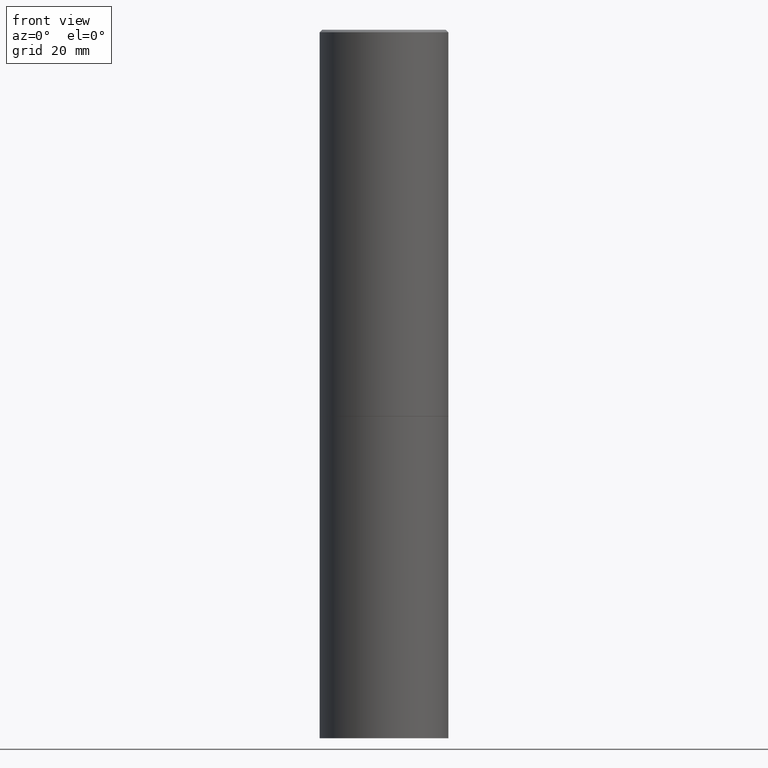
[diagram: clean part render]
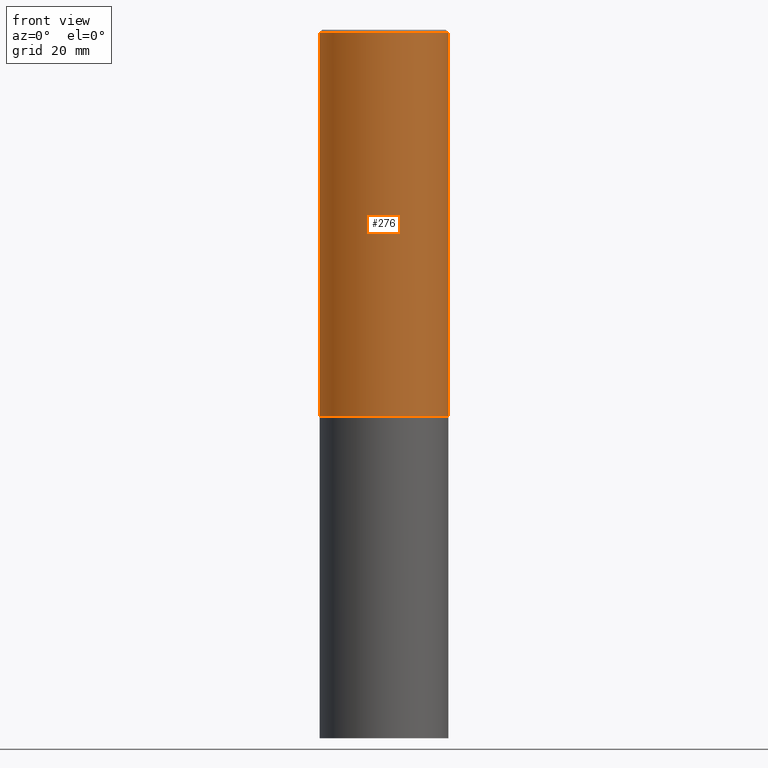
[diagram: same view with one face highlighted and labeled with its STEP entity id]
A machine part, front view. The second image highlights one B-rep face of the part: STEP entity #276.
In plain terms, the highlighted cylindrical surface (partial cylindrical patch) has radius 12.7 mm, axis along (-0, 0, 1).
Its self-contained STEP definition (entity closure, byte-faithful):
#3 = LINE ( 'NONE', #17, #142 ) ;
#12 = VERTEX_POINT ( 'NONE', #364 ) ;
#17 = CARTESIAN_POINT ( 'NONE',  ( -0.4999999999999998335, 3.552713678800499746E-15, -2.459467545127452330E-29 ) ) ;
#18 = VERTEX_POINT ( 'NONE', #109 ) ;
#20 = AXIS2_PLACEMENT_3D ( 'NONE', #47, #51, #165 ) ;
#42 = VERTEX_POINT ( 'NONE', #187 ) ;
#47 = CARTESIAN_POINT ( 'NONE',  ( 7.333960949749226429E-29, -1.047095253519059492E-14, -2.999000000000000554 ) ) ;
#51 = DIRECTION ( 'NONE',  ( -2.445468806185136597E-29, 3.491481338843145583E-15, 1.000000000000000000 ) ) ;
#53 = CARTESIAN_POINT ( 'NONE',  ( 0.4999999999999998335, -3.491481338843132566E-15, 2.438088387897967336E-29 ) ) ;
#77 = CARTESIAN_POINT ( 'NONE',  ( 0.000000000000000000, 0.000000000000000000, 0.000000000000000000 ) ) ;
#85 = CARTESIAN_POINT ( 'NONE',  ( 4.890937612370306439E-31, -6.982962677686338448E-17, -0.02000000000000013572 ) ) ;
#88 = ORIENTED_EDGE ( 'NONE', *, *, #284, .T. ) ;
#107 = DIRECTION ( 'NONE',  ( -2.445468806185136877E-29, 3.491481338843145188E-15, 1.000000000000000000 ) ) ;
#109 = CARTESIAN_POINT ( 'NONE',  ( 0.4999999999999997224, -3.500078625662627502E-15, -0.02000000000000013572 ) ) ;
#111 = CYLINDRICAL_SURFACE ( 'NONE', #197, 0.4999999999999998335 ) ;
#112 = ORIENTED_EDGE ( 'NONE', *, *, #172, .F. ) ;
#124 = ORIENTED_EDGE ( 'NONE', *, *, #296, .T. ) ;
#134 = LINE ( 'NONE', #53, #175 ) ;
#140 = FACE_OUTER_BOUND ( 'NONE', #190, .T. ) ;
#142 = VECTOR ( 'NONE', #163, 39.37007874015748143 ) ;
#148 = AXIS2_PLACEMENT_3D ( 'NONE', #85, #196, #269 ) ;
#163 = DIRECTION ( 'NONE',  ( -2.445468806185136877E-29, 3.491481338843145188E-15, 1.000000000000000000 ) ) ;
#165 = DIRECTION ( 'NONE',  ( 1.000000000000000000, -6.982962677686266711E-15, 0.000000000000000000 ) ) ;
#172 = EDGE_CURVE ( 'NONE', #42, #12, #3, .T. ) ;
#175 = VECTOR ( 'NONE', #107, 39.37007874015748143 ) ;
#187 = CARTESIAN_POINT ( 'NONE',  ( -0.5000000000000000000, -1.717677402183226998E-15, -2.999000000000000554 ) ) ;
#189 = DIRECTION ( 'NONE',  ( -2.445468806185136597E-29, 3.491481338843145583E-15, 1.000000000000000000 ) ) ;
#190 = EDGE_LOOP ( 'NONE', ( #112, #124, #88, #360 ) ) ;
#196 = DIRECTION ( 'NONE',  ( -2.445468806185136597E-29, 3.491481338843145583E-15, 1.000000000000000000 ) ) ;
#197 = AXIS2_PLACEMENT_3D ( 'NONE', #77, #189, #294 ) ;
#203 = CIRCLE ( 'NONE', #148, 0.4999999999999997224 ) ;
#248 = CIRCLE ( 'NONE', #20, 0.5000000000000000000 ) ;
#269 = DIRECTION ( 'NONE',  ( 1.000000000000000000, -6.982962677686266711E-15, 0.000000000000000000 ) ) ;
#276 = ADVANCED_FACE ( 'NONE', ( #140 ), #111, .T. ) ;
#284 = EDGE_CURVE ( 'NONE', #289, #18, #134, .T. ) ;
#289 = VERTEX_POINT ( 'NONE', #366 ) ;
#294 = DIRECTION ( 'NONE',  ( 1.000000000000000000, -6.982962677686267499E-15, 4.876176775795936353E-29 ) ) ;
#296 = EDGE_CURVE ( 'NONE', #42, #289, #248, .T. ) ;
#326 = EDGE_CURVE ( 'NONE', #12, #18, #203, .T. ) ;
#360 = ORIENTED_EDGE ( 'NONE', *, *, #326, .F. ) ;
#364 = CARTESIAN_POINT ( 'NONE',  ( -0.4999999999999997224, 3.421651712066268085E-15, -0.02000000000000013572 ) ) ;
#366 = CARTESIAN_POINT ( 'NONE',  ( 0.5000000000000000000, -1.396243387403372828E-14, -2.999000000000000554 ) ) ;